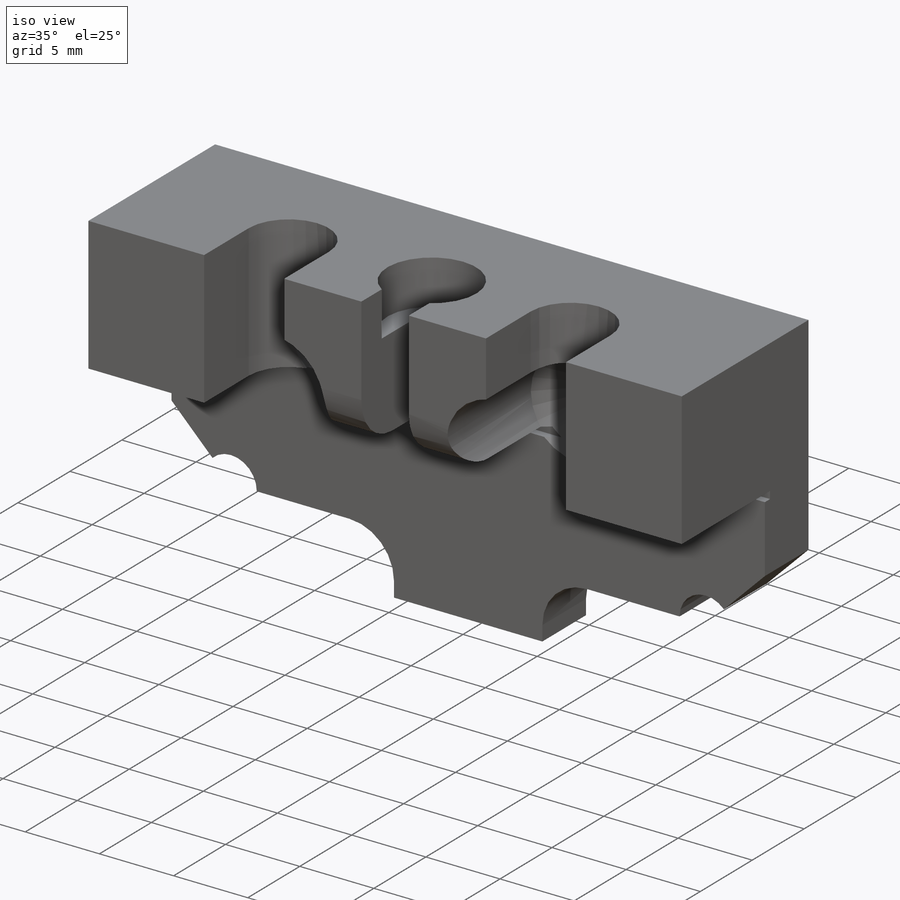
[diagram: iso view]
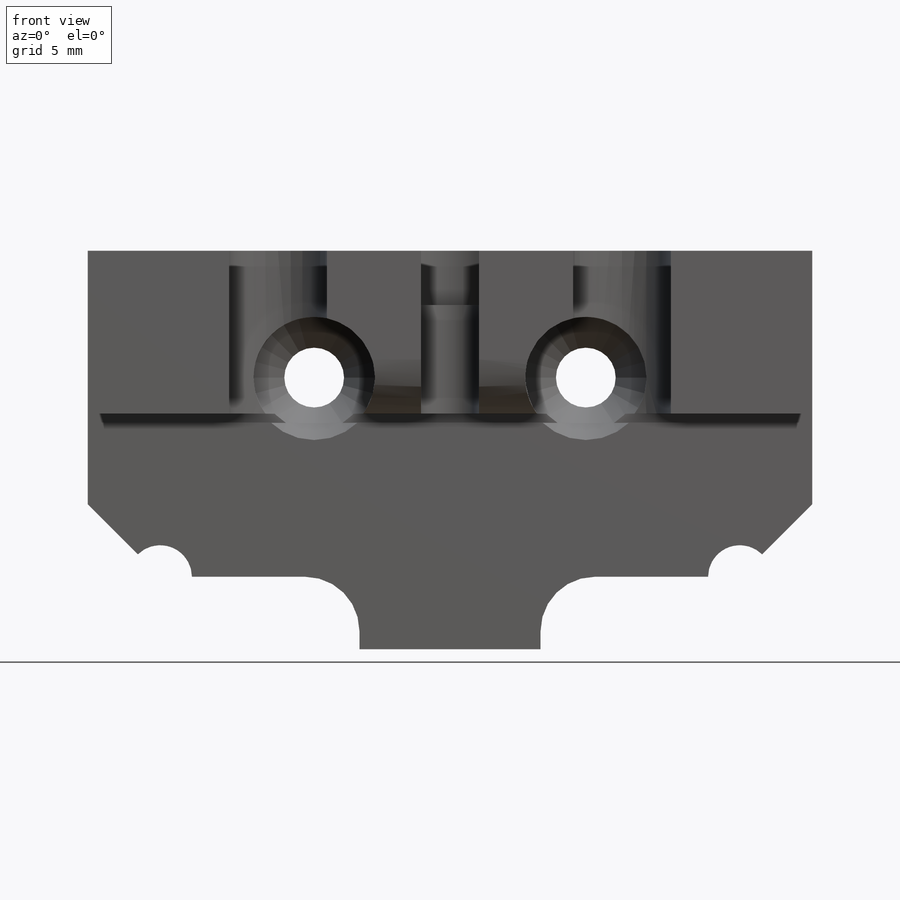
[diagram: front view]
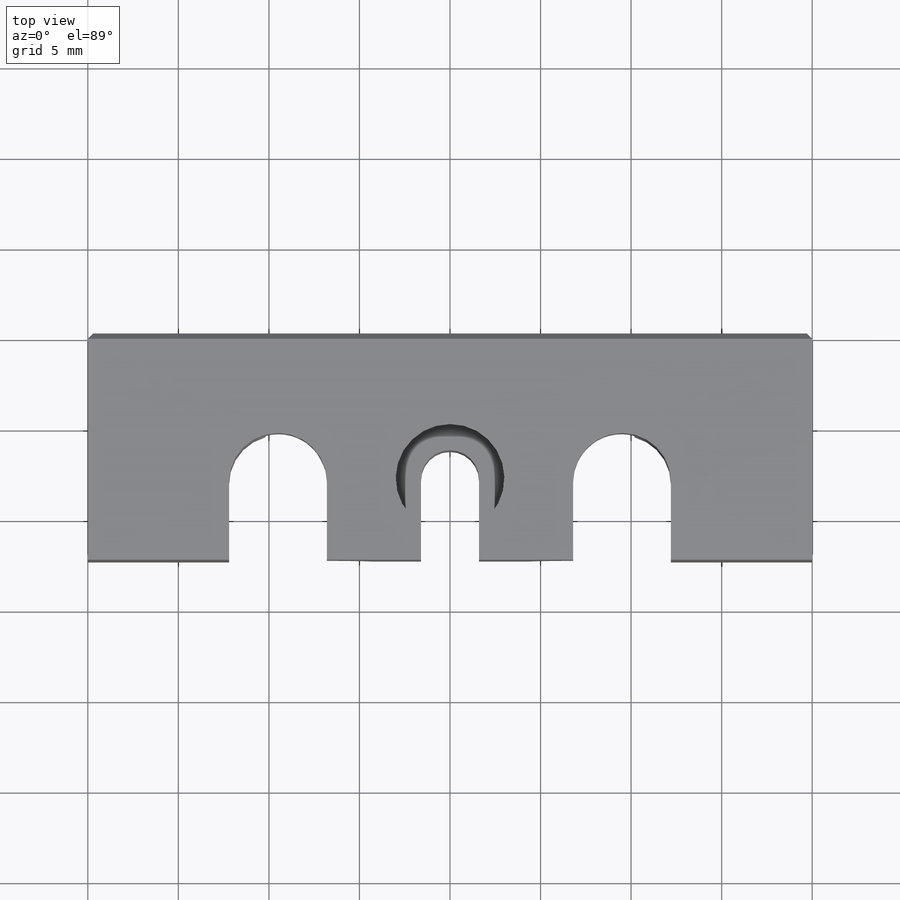
[diagram: top view]
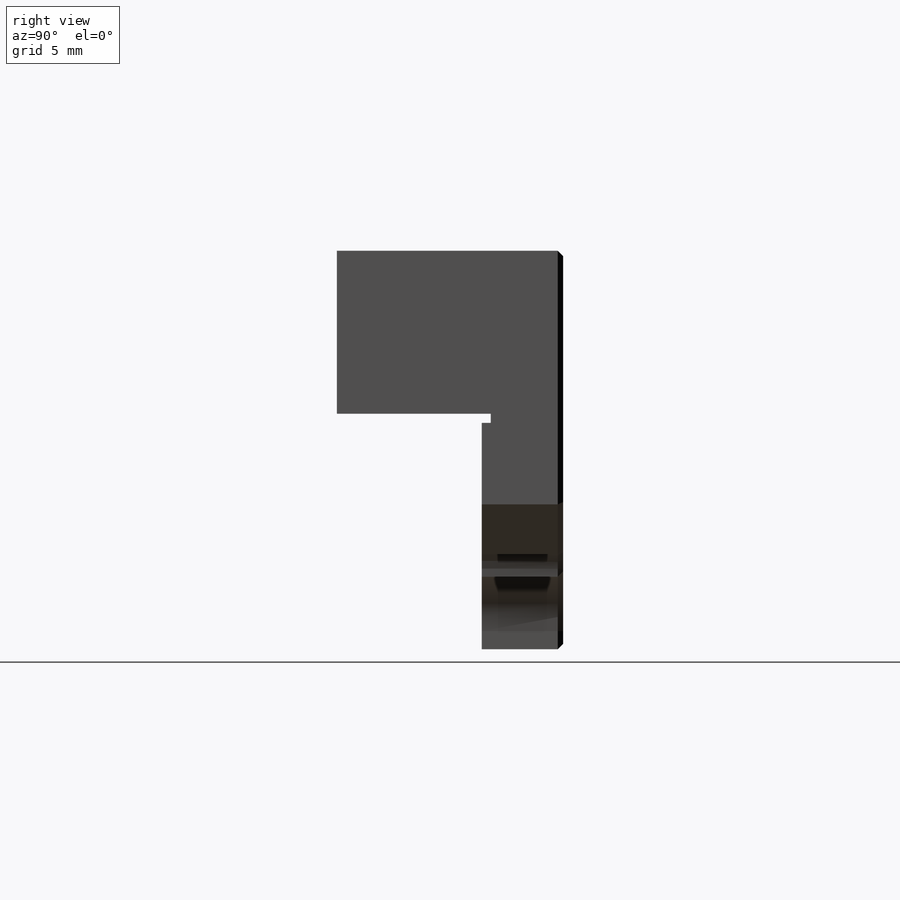
[diagram: right view]
SOLIDWORKS PART (.sldprt)
format: sldprt  version: not decoded by parser v0  size: 446,464 bytes
history: native  units: mm
features: sketch x9, cut_extrude x8, chamfer x3, fillet x2, material x1, extrude x1, plane x1, mirror x1 (+13 scaffold rows collapsed)
feature tree (39):
  scaffold x13  (default folders/planes/origin — collapsed)
  material  "Custom Plastic"
  sketch  "Sketch1"  dims[D1=20.0mm D2=40.0mm D3=22.0mm]
  extrude  "Boss-Extrude1"  Depth=12.5mm
  sketch  "Sketch2"  dims[c1.D1=1.65mm c1.D2=15.0mm c1.D3=7.0mm c2.D2=8.0mm c2.D4=15.0mm c2.D5=1.0mm c2.D6=32.0mm]
  cut_extrude  "Cut-Extrude1"  [1 undecoded]
  sketch  "Sketch5"  dims[c1.D2=5.4mm c1.D1=24.0mm c1.D3=3.0mm c2.D1=~6.921285mm c3.D1=45.0deg c4.D1=5.4mm c4.D3=9.5mm c5.D1=4.3mm c5.D3=9.5mm]
  cut_extrude  "Cut-Extrude4"  [1 undecoded]
  sketch  "Sketch6"  dims[D1=9.0mm D2=4.5mm]
  cut_extrude  "Cut-Extrude5"  [1 undecoded]
  sketch  "Sketch8"  dims[D1=1.6mm D2=0.2mm]
  cut_extrude  "Cut-Extrude7"  [1 undecoded]
  sketch  "Sketch9"  dims[D1=6.7mm]
  cut_extrude  "Cut-Extrude8"  [1 undecoded]
  chamfer  "Chamfer5"  Distance=1.8mm Angle=45deg
  chamfer  "Chamfer6"  Distance=10mm Angle=45deg
  sketch  "Sketch11"  dims[D1=6.0mm]
  cut_extrude  "Cut-Extrude9"  Depth=3mm
  plane  "Plane1"
  mirror  "Mirror1"
  sketch  "Sketch12"  dims[D2=3.5mm D1=32.0mm D3=9.0mm D4=10.0mm]
  cut_extrude  "Cut-Extrude10"  [1 undecoded]
  sketch  "Sketch13"  dims[D1=0.5mm]
  cut_extrude  "Cut-Extrude11"  [1 undecoded]
  fillet  "Fillet1"  Radius=3mm
  chamfer  "Chamfer7"  Distance=0.3mm Angle=45deg
  fillet  "Fillet2"  Radius=3mm
decode coverage: 16 of 24 modeling features carry decoded parameters
note: ~ marks probable driven/reference dimensions
note: 7 parameter values undecoded
summary: no parameter record found for 7 features
note: suppression state not decoded; provenance and decode notes live in map.json
